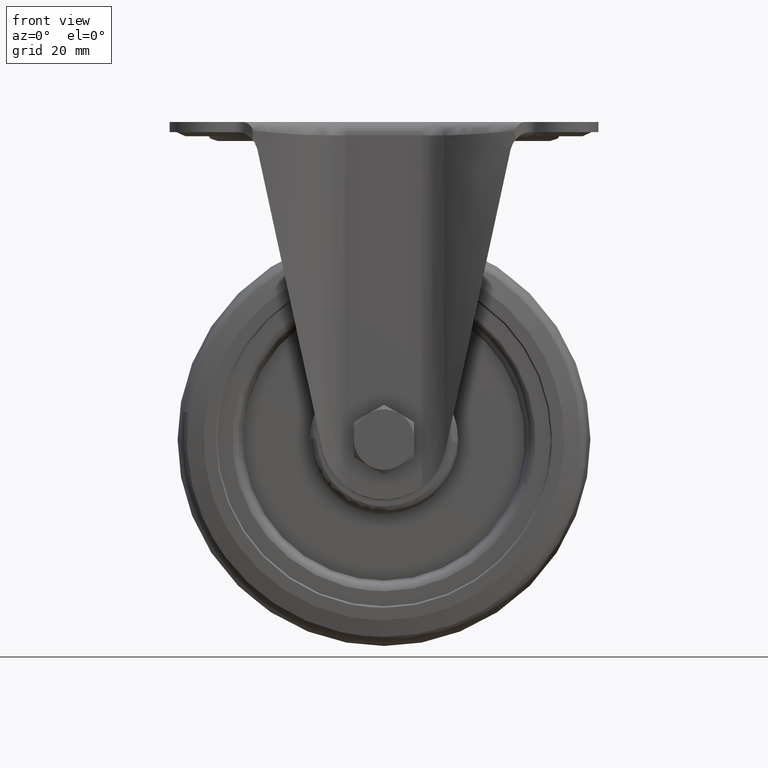
[diagram: clean part render]
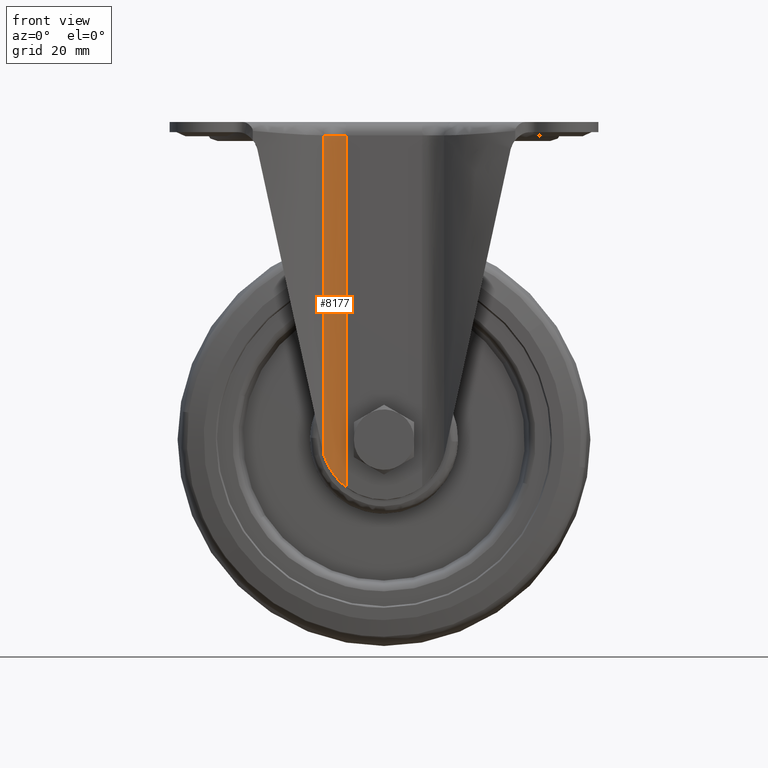
[diagram: same view with one face highlighted and labeled with its STEP entity id]
A machine part, front view. The second image highlights one B-rep face of the part: STEP entity #8177.
In plain terms, the highlighted face is a freeform B-spline surface patch.
Its self-contained STEP definition (entity closure, byte-faithful):
#7332=CARTESIAN_POINT('',(-11.998855098554341,-28.850000000047650,-4.200000000000000));
#7333=VERTEX_POINT('',#7332);
#7388=CARTESIAN_POINT('',(-18.914965390891851,-31.823452248050199,-4.200000000000000));
#7389=VERTEX_POINT('',#7388);
#7403=CARTESIAN_POINT('',(-11.998855098554341,-28.850000000047700,-4.200000000000000));
#7404=CARTESIAN_POINT('',(-16.096100331161331,-28.850000000047693,-4.200000000000000));
#7405=CARTESIAN_POINT('',(-18.914965390891840,-31.823452248050209,-4.200000000000000));
#7413=(BOUNDED_CURVE()B_SPLINE_CURVE(2,(#7403,#7404,#7405),.UNSPECIFIED.,.F.,.U.)CURVE()GEOMETRIC_REPRESENTATION_ITEM()QUASI_UNIFORM_CURVE()RATIONAL_B_SPLINE_CURVE((1.0,0.918692092121069,1.0))REPRESENTATION_ITEM(''));
#7414=EDGE_CURVE('',#7333,#7389,#7413,.T.);
#8094=CARTESIAN_POINT('',(-11.998855098554341,-28.850000000047700,-114.853968285316200));
#8095=VERTEX_POINT('',#8094);
#8096=CARTESIAN_POINT('',(-11.998855098554341,-28.850000000047700,-114.853968285316200));
#8097=CARTESIAN_POINT('',(-11.998855098554341,-28.850000000047650,-4.200000000000000));
#8098=QUASI_UNIFORM_CURVE('',1,(#8096,#8097),.UNSPECIFIED.,.F.,.U.);
#8099=EDGE_CURVE('',#8095,#7333,#8098,.T.);
#8123=CARTESIAN_POINT('',(-19.136403117673531,-32.065230940551722,-117.620317492449100));
#8124=CARTESIAN_POINT('',(-19.136403117673531,-32.065230940551722,-1.364492062688768));
#8125=CARTESIAN_POINT('',(-16.140492060254314,-28.678969490311665,-117.620317492449050));
#8126=CARTESIAN_POINT('',(-16.140492060254314,-28.678969490311665,-1.364492062688768));
#8127=CARTESIAN_POINT('',(-11.622704674940341,-28.857426248229601,-117.620317492449130));
#8128=CARTESIAN_POINT('',(-11.622704674940341,-28.857426248229601,-1.364492062688768));
#8136=(BOUNDED_SURFACE()B_SPLINE_SURFACE(1,2,((#8123,#8125,#8127),(#8124,#8126,#8128)),.UNSPECIFIED.,.F.,.F.,.U.)B_SPLINE_SURFACE_WITH_KNOTS((2,2),(3,3),(0.0,116.255825429760310),(0.0,8.584038601922808),.UNSPECIFIED.)GEOMETRIC_REPRESENTATION_ITEM()RATIONAL_B_SPLINE_SURFACE(((1.0,0.899512526848063,0.991242650513314),(1.0,0.899512526848063,0.991242650513314)))REPRESENTATION_ITEM('')SURFACE());
#8137=ORIENTED_EDGE('',*,*,#8099,.T.);
#8138=ORIENTED_EDGE('',*,*,#7414,.T.);
#8139=CARTESIAN_POINT('',(-18.914965390891851,-31.823452248050199,-104.978530906988400));
#8140=VERTEX_POINT('',#8139);
#8141=CARTESIAN_POINT('',(-18.914965390891851,-31.823452248050199,-104.978530906988400));
#8142=CARTESIAN_POINT('',(-18.914965390891851,-31.823452248050199,-4.200000000000000));
#8143=QUASI_UNIFORM_CURVE('',1,(#8141,#8142),.UNSPECIFIED.,.F.,.U.);
#8144=EDGE_CURVE('',#8140,#7389,#8143,.T.);
#8145=ORIENTED_EDGE('',*,*,#8144,.F.);
#8146=CARTESIAN_POINT('',(-18.914965390891879,-31.823452248050248,-104.978530906988400));
#8147=CARTESIAN_POINT('',(-18.765710086906790,-31.666011749921829,-105.458065443264700));
#8148=CARTESIAN_POINT('',(-18.599152610271219,-31.501124743664661,-105.929142956220200));
#8149=CARTESIAN_POINT('',(-18.231078340434991,-31.165968845456160,-106.857395984430300));
#8150=CARTESIAN_POINT('',(-18.029560126031068,-30.995666048350412,-107.314559830347700));
#8151=CARTESIAN_POINT('',(-17.754835103787450,-30.784317024220542,-107.878599665892490));
#8152=CARTESIAN_POINT('',(-17.698745783773571,-30.742121147626680,-107.991035020972600));
#8153=CARTESIAN_POINT('',(-17.584242001875609,-30.657992467811258,-108.215185820353100));
#8154=CARTESIAN_POINT('',(-17.525779247702420,-30.616026022026091,-108.326990956902310));
#8155=CARTESIAN_POINT('',(-17.347189053237550,-30.490934539772152,-108.660713420191400));
#8156=CARTESIAN_POINT('',(-17.224109079976440,-30.408785622087169,-108.880495152910700));
#8157=CARTESIAN_POINT('',(-16.842750511452660,-30.167319040215510,-109.532083203875200));
#8158=CARTESIAN_POINT('',(-16.572381381230880,-30.012980917715009,-109.956153777800590));
#8159=CARTESIAN_POINT('',(-15.998406549350070,-29.723918948273159,-110.784877814129500));
#8160=CARTESIAN_POINT('',(-15.694806828088570,-29.589164168764661,-111.189526223048800));
#8161=CARTESIAN_POINT('',(-15.052429105482100,-29.345923423892732,-111.979989755808010));
#8162=CARTESIAN_POINT('',(-14.713664713664601,-29.237397356104839,-112.365802827315090));
#8163=CARTESIAN_POINT('',(-14.176741606584240,-29.100354050660780,-112.930444352601800));
#8164=CARTESIAN_POINT('',(-13.992960203221370,-29.058978350444331,-113.116307938982200));
#8165=CARTESIAN_POINT('',(-13.709654234768600,-29.004323157507891,-113.391549105528700));
#8166=CARTESIAN_POINT('',(-13.613945630219719,-28.987341097482521,-113.482703548687000));
#8167=CARTESIAN_POINT('',(-13.419898193153649,-28.956030814576870,-113.663819438370890));
#8168=CARTESIAN_POINT('',(-13.321819466252290,-28.941748718032841,-113.753533501059100));
#8169=CARTESIAN_POINT('',(-12.827899938326100,-28.877772032665320,-114.196295623950800));
#8170=CARTESIAN_POINT('',(-12.419799067794340,-28.850000000047700,-114.533538606443100));
#8171=CARTESIAN_POINT('',(-11.998855098554330,-28.850000000047700,-114.853968285316200));
#8172=B_SPLINE_CURVE_WITH_KNOTS('',3,(#8146,#8147,#8148,#8149,#8150,#8151,#8152,#8153,#8154,#8155,#8156,#8157,#8158,#8159,#8160,#8161,#8162,#8163,#8164,#8165,#8166,#8167,#8168,#8169,#8170,#8171),.UNSPECIFIED.,.F.,.U.,(4,2,2,2,2,2,2,2,2,2,2,2,4),(0.0,0.124999999999997,0.249999999999995,0.281249999999996,0.312499999999998,0.374999999999998,0.499999999999998,0.624999999999997,0.749999999999997,0.812499999999997,0.843749999999997,0.874999999999997,1.0),.UNSPECIFIED.);
#8173=EDGE_CURVE('',#8140,#8095,#8172,.T.);
#8174=ORIENTED_EDGE('',*,*,#8173,.T.);
#8175=EDGE_LOOP('',(#8137,#8138,#8145,#8174));
#8176=FACE_OUTER_BOUND('',#8175,.T.);
#8177=ADVANCED_FACE('',(#8176),#8136,.F.);